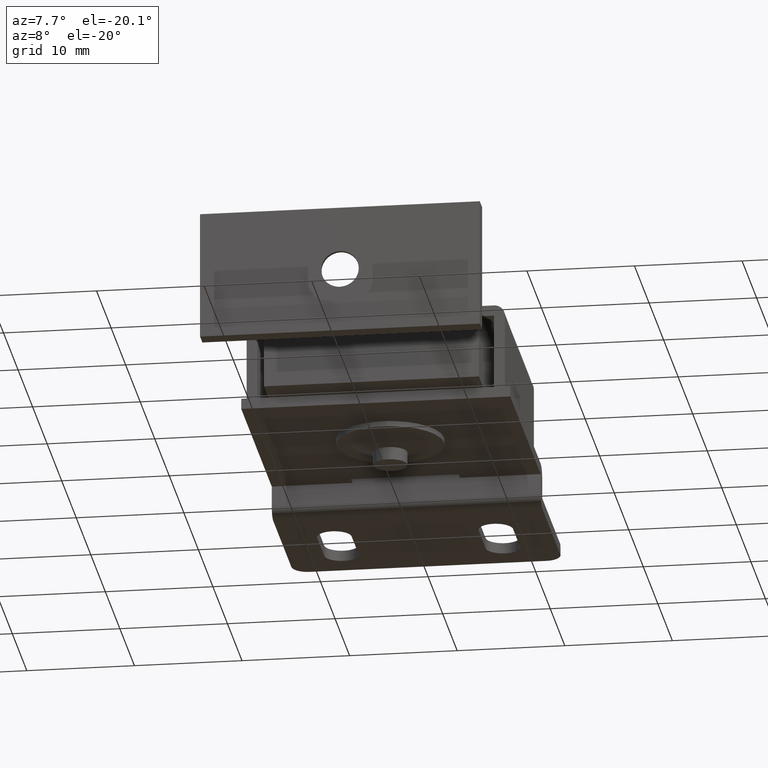
[diagram: clean part render]
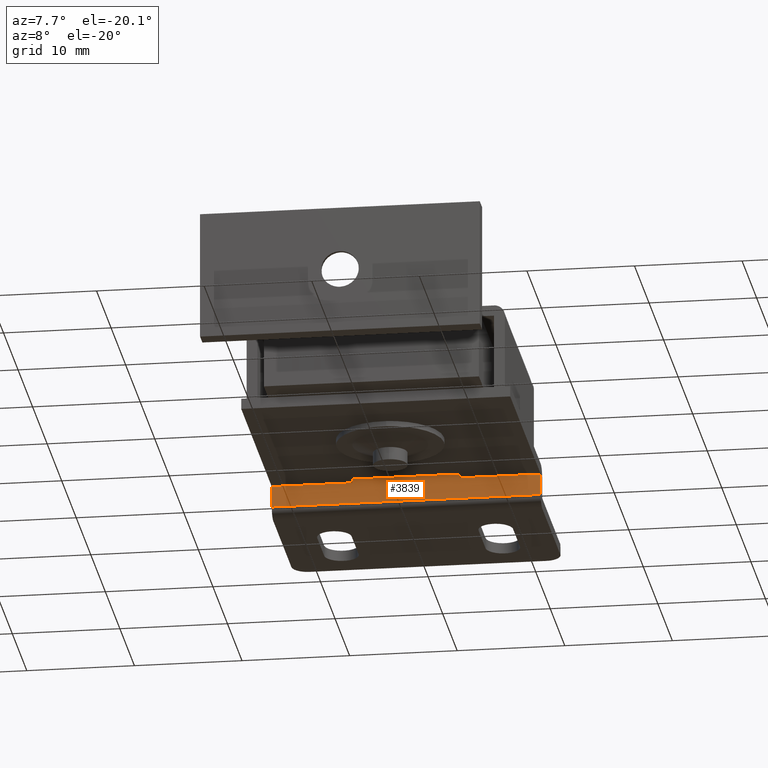
[diagram: same view with one face highlighted and labeled with its STEP entity id]
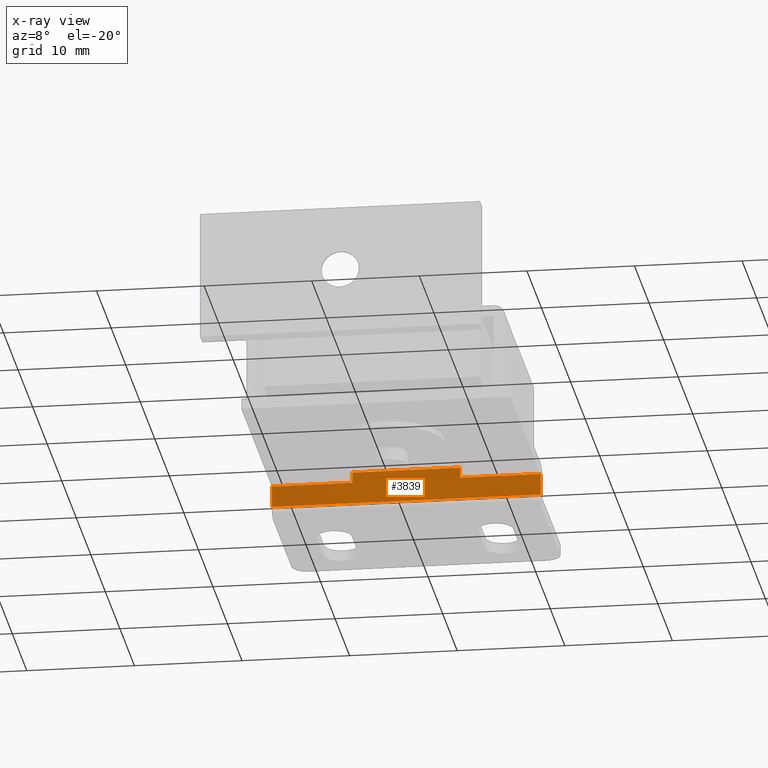
[diagram: x-ray of the same camera — body ghosted, the highlighted face saturated]
A machine part, auxiliary view. The second image highlights one B-rep face of the part: STEP entity #3839.
The next image is the same camera in x-ray: the body ghosted, the highlighted face saturated — about 0% of this face is hidden behind the body in this view.
In plain terms, the highlighted face is a freeform B-spline surface patch.
Its self-contained STEP definition (entity closure, byte-faithful):
#3745=CARTESIAN_POINT('',(-12.500002000000000,-15.0,0.999999999999915));
#3746=VERTEX_POINT('',#3745);
#3761=CARTESIAN_POINT('',(12.500000000000000,-15.0,0.999999999999915));
#3762=VERTEX_POINT('',#3761);
#3776=CARTESIAN_POINT('',(12.500000000000000,-15.0,0.999999999999915));
#3777=CARTESIAN_POINT('',(-12.500002000000000,-15.0,0.999999999999915));
#3778=QUASI_UNIFORM_CURVE('',1,(#3776,#3777),.UNSPECIFIED.,.F.,.U.);
#3779=EDGE_CURVE('',#3762,#3746,#3778,.T.);
#3784=CARTESIAN_POINT('',(-13.748752051445150,-15.0,0.850150005814493));
#3785=CARTESIAN_POINT('',(-13.748752051445150,-15.0,4.149850074651693));
#3786=CARTESIAN_POINT('',(13.748750721997450,-15.0,0.850150005814493));
#3787=CARTESIAN_POINT('',(13.748750721997450,-15.0,4.149850074651693));
#3788=B_SPLINE_SURFACE_WITH_KNOTS('',1,1,((#3784,#3786),(#3785,#3787)),.UNSPECIFIED.,.F.,.F.,.U.,(2,2),(2,2),(0.0,3.299700068837200),(0.0,27.497502773442601),.UNSPECIFIED.);
#3789=CARTESIAN_POINT('',(-12.500002000000000,-15.0,3.0));
#3790=VERTEX_POINT('',#3789);
#3791=CARTESIAN_POINT('',(-12.500002000000000,-15.0,3.0));
#3792=CARTESIAN_POINT('',(-12.500002000000000,-15.0,0.999999999999915));
#3793=QUASI_UNIFORM_CURVE('',1,(#3791,#3792),.UNSPECIFIED.,.F.,.U.);
#3794=EDGE_CURVE('',#3790,#3746,#3793,.T.);
#3795=ORIENTED_EDGE('',*,*,#3794,.T.);
#3796=ORIENTED_EDGE('',*,*,#3779,.F.);
#3797=CARTESIAN_POINT('',(12.500000000000000,-15.0,3.0));
#3798=VERTEX_POINT('',#3797);
#3799=CARTESIAN_POINT('',(12.500000000000000,-15.0,3.0));
#3800=CARTESIAN_POINT('',(12.500000000000000,-15.0,0.999999999999915));
#3801=QUASI_UNIFORM_CURVE('',1,(#3799,#3800),.UNSPECIFIED.,.F.,.U.);
#3802=EDGE_CURVE('',#3798,#3762,#3801,.T.);
#3803=ORIENTED_EDGE('',*,*,#3802,.F.);
#3804=CARTESIAN_POINT('',(5.0,-15.0,3.0));
#3805=VERTEX_POINT('',#3804);
#3806=CARTESIAN_POINT('',(12.500000000000000,-15.0,3.0));
#3807=CARTESIAN_POINT('',(5.0,-15.0,3.0));
#3808=QUASI_UNIFORM_CURVE('',1,(#3806,#3807),.UNSPECIFIED.,.F.,.U.);
#3809=EDGE_CURVE('',#3798,#3805,#3808,.T.);
#3810=ORIENTED_EDGE('',*,*,#3809,.T.);
#3811=CARTESIAN_POINT('',(5.0,-14.999999685840640,3.999999999999950));
#3812=VERTEX_POINT('',#3811);
#3813=CARTESIAN_POINT('',(5.0,-14.999999685840640,3.999999999999950));
#3814=CARTESIAN_POINT('',(5.0,-15.0,3.0));
#3815=QUASI_UNIFORM_CURVE('',1,(#3813,#3814),.UNSPECIFIED.,.F.,.U.);
#3816=EDGE_CURVE('',#3812,#3805,#3815,.T.);
#3817=ORIENTED_EDGE('',*,*,#3816,.F.);
#3818=CARTESIAN_POINT('',(-5.0,-15.0,4.0));
#3819=VERTEX_POINT('',#3818);
#3820=CARTESIAN_POINT('',(-5.0,-15.0,4.0));
#3821=CARTESIAN_POINT('',(5.0,-14.999999685840640,3.999999999999950));
#3822=QUASI_UNIFORM_CURVE('',1,(#3820,#3821),.UNSPECIFIED.,.F.,.U.);
#3823=EDGE_CURVE('',#3819,#3812,#3822,.T.);
#3824=ORIENTED_EDGE('',*,*,#3823,.F.);
#3825=CARTESIAN_POINT('',(-5.0,-15.0,3.0));
#3826=VERTEX_POINT('',#3825);
#3827=CARTESIAN_POINT('',(-5.0,-15.0,4.0));
#3828=CARTESIAN_POINT('',(-5.0,-15.0,3.0));
#3829=QUASI_UNIFORM_CURVE('',1,(#3827,#3828),.UNSPECIFIED.,.F.,.U.);
#3830=EDGE_CURVE('',#3819,#3826,#3829,.T.);
#3831=ORIENTED_EDGE('',*,*,#3830,.T.);
#3832=CARTESIAN_POINT('',(-5.0,-15.0,3.0));
#3833=CARTESIAN_POINT('',(-12.500002000000000,-15.0,3.0));
#3834=QUASI_UNIFORM_CURVE('',1,(#3832,#3833),.UNSPECIFIED.,.F.,.U.);
#3835=EDGE_CURVE('',#3826,#3790,#3834,.T.);
#3836=ORIENTED_EDGE('',*,*,#3835,.T.);
#3837=EDGE_LOOP('',(#3795,#3796,#3803,#3810,#3817,#3824,#3831,#3836));
#3838=FACE_OUTER_BOUND('',#3837,.T.);
#3839=ADVANCED_FACE('',(#3838),#3788,.F.);